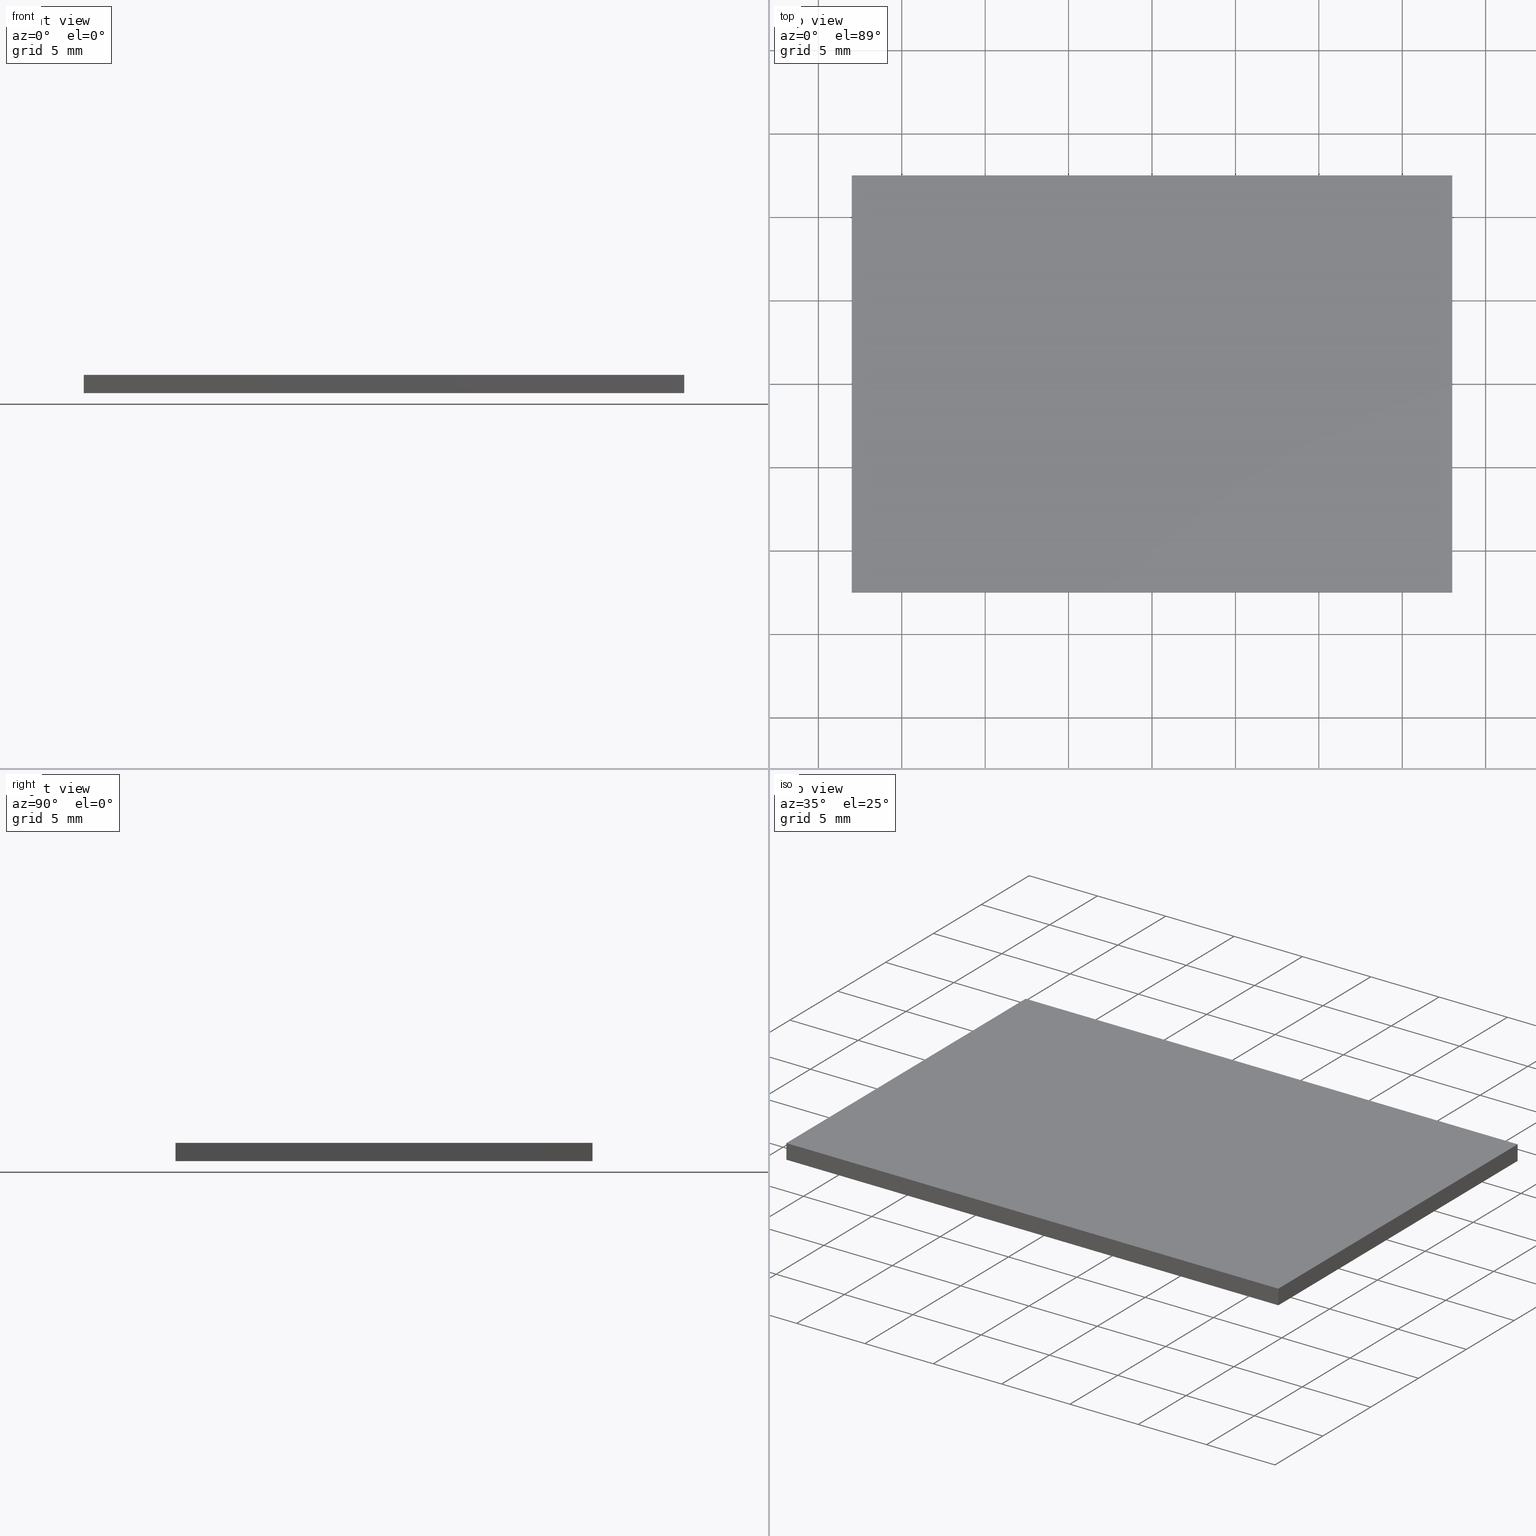
[diagram: canonical four-view strip — front | top / right | iso, engineering-drawing reading convention]
A machine part, canonical four-view strip (front | top / right | iso — engineering-drawing reading convention). The complete STEP part file that produces these views, byte-faithful:
ISO-10303-21;
HEADER;
FILE_DESCRIPTION (( 'STEP AP203' ),
    '1' );
FILE_NAME ('348505.STEP',
    '2019-07-31T07:36:08',
    ( '' ),
    ( '' ),
    'SwSTEP 2.0',
    'SolidWorks 2016',
    '' );
FILE_SCHEMA (( 'CONFIG_CONTROL_DESIGN' ));
ENDSEC;

DATA;
#1 = CALENDAR_DATE ( 2019, 31, 7 ) ;
#2 = SECURITY_CLASSIFICATION_LEVEL ( 'unclassified' ) ;
#3 = CC_DESIGN_PERSON_AND_ORGANIZATION_ASSIGNMENT ( #141, #199, ( #158 ) ) ;
#4 = ORIENTED_EDGE ( 'NONE', *, *, #246, .T. ) ;
#5 = PERSON_AND_ORGANIZATION ( #126, #157 ) ;
#6 = PRODUCT_DEFINITION_SHAPE ( 'NONE', 'NONE',  #16 ) ;
#7 = LINE ( 'NONE', #42, #259 ) ;
#8 = VERTEX_POINT ( 'NONE', #110 ) ;
#9 = PRODUCT_RELATED_PRODUCT_CATEGORY ( 'detail', '', ( #102 ) ) ;
#10 = VECTOR ( 'NONE', #262, 1000.000000000000000 ) ;
#11 = DIRECTION ( 'NONE',  ( -0.0000000000000000000, -0.0000000000000000000, -1.000000000000000000 ) ) ;
#12 = ORIENTED_EDGE ( 'NONE', *, *, #18, .T. ) ;
#13 = CARTESIAN_POINT ( 'NONE',  ( 17.99999999999999600, 12.49999999999999600, 0.0000000000000000000 ) ) ;
#14 = CARTESIAN_POINT ( 'NONE',  ( -18.00000000000000400, -12.50000000000000400, 1.100000000000000100 ) ) ;
#15 = APPROVAL_DATE_TIME ( #81, #311 ) ;
#16 = PRODUCT_DEFINITION ( 'δ֪', '', #103, #135 ) ;
#17 = DIRECTION ( 'NONE',  ( 0.0000000000000000000, -1.000000000000000000, 0.0000000000000000000 ) ) ;
#18 = EDGE_CURVE ( 'NONE', #184, #8, #266, .T. ) ;
#19 = ADVANCED_FACE ( 'NONE', ( #204 ), #188, .F. ) ;
#20 = PERSON_AND_ORGANIZATION_ROLE ( 'creator' ) ;
#21 = CALENDAR_DATE ( 2019, 31, 7 ) ;
#22 = VERTEX_POINT ( 'NONE', #302 ) ;
#23 = PERSON_AND_ORGANIZATION_ROLE ( 'creator' ) ;
#24 = EDGE_CURVE ( 'NONE', #80, #186, #46, .T. ) ;
#25 = CALENDAR_DATE ( 2019, 31, 7 ) ;
#26 = LINE ( 'NONE', #282, #94 ) ;
#27 = PRODUCT_DEFINITION ( 'δ֪', '', #158, #154 ) ;
#28 = COORDINATED_UNIVERSAL_TIME_OFFSET ( 8, 0, .AHEAD. ) ;
#29 = VECTOR ( 'NONE', #33, 1000.000000000000000 ) ;
#30 = APPROVAL_DATE_TIME ( #98, #53 ) ;
#31 = CC_DESIGN_PERSON_AND_ORGANIZATION_ASSIGNMENT ( #281, #20, ( #16 ) ) ;
#32 = CARTESIAN_POINT ( 'NONE',  ( -18.00000000000000400, 12.49999999999999600, 0.0000000000000000000 ) ) ;
#33 = DIRECTION ( 'NONE',  ( 0.0000000000000000000, 1.000000000000000000, 0.0000000000000000000 ) ) ;
#34 = APPROVAL_DATE_TIME ( #295, #147 ) ;
#35 = VECTOR ( 'NONE', #232, 1000.000000000000000 ) ;
#36 = CARTESIAN_POINT ( 'NONE',  ( -18.00000000000000400, -12.50000000000000400, 0.0000000000000000000 ) ) ;
#37 = AXIS2_PLACEMENT_3D ( 'NONE', #310, #73, #171 ) ;
#38 = CC_DESIGN_PERSON_AND_ORGANIZATION_ASSIGNMENT ( #253, #213, ( #269 ) ) ;
#39 = LOCAL_TIME ( 15, 36, 8.000000000000000000, #151 ) ;
#40 = DIRECTION ( 'NONE',  ( -1.000000000000000000, 0.0000000000000000000, 0.0000000000000000000 ) ) ;
#41 = DIRECTION ( 'NONE',  ( 0.0000000000000000000, 0.0000000000000000000, 1.000000000000000000 ) ) ;
#42 = CARTESIAN_POINT ( 'NONE',  ( -18.00000000000000400, 12.49999999999999600, 1.100000000000000100 ) ) ;
#43 =( NAMED_UNIT ( * ) SI_UNIT ( $, .STERADIAN. ) SOLID_ANGLE_UNIT ( ) );
#44 = PERSON_AND_ORGANIZATION_ROLE ( 'design_supplier' ) ;
#45 = APPROVAL_STATUS ( 'not_yet_approved' ) ;
#46 = LINE ( 'NONE', #277, #301 ) ;
#47 = SECURITY_CLASSIFICATION ( '', '', #289 ) ;
#48 = APPLICATION_CONTEXT ( 'configuration controlled 3d designs of mechanical parts and assemblies' ) ;
#49 = APPROVAL_ROLE ( '' ) ;
#50 = COORDINATED_UNIVERSAL_TIME_OFFSET ( 8, 0, .AHEAD. ) ;
#51 = ORIENTED_EDGE ( 'NONE', *, *, #246, .F. ) ;
#52 = AXIS2_PLACEMENT_3D ( 'NONE', #105, #133, #300 ) ;
#53 = APPROVAL ( #119, 'δָ��' ) ;
#54 = APPROVAL_PERSON_ORGANIZATION ( #247, #132, #49 ) ;
#55 = ORIENTED_EDGE ( 'NONE', *, *, #223, .T. ) ;
#56 = EDGE_CURVE ( 'NONE', #78, #22, #201, .T. ) ;
#57 = SECURITY_CLASSIFICATION ( '', '', #2 ) ;
#58 = APPROVAL_PERSON_ORGANIZATION ( #274, #82, #177 ) ;
#59 = FACE_OUTER_BOUND ( 'NONE', #271, .T. ) ;
#60 = EDGE_CURVE ( 'NONE', #22, #8, #261, .T. ) ;
#61 = UNCERTAINTY_MEASURE_WITH_UNIT (LENGTH_MEASURE( 1.000000000000000100E-005 ), #166, 'distance_accuracy_value', 'NONE');
#62 = CARTESIAN_POINT ( 'NONE',  ( 17.99999999999999600, 12.49999999999999600, 1.100000000000000100 ) ) ;
#63 = ORIENTED_EDGE ( 'NONE', *, *, #273, .T. ) ;
#64 = CARTESIAN_POINT ( 'NONE',  ( 17.99999999999999600, -12.50000000000000400, 1.100000000000000100 ) ) ;
#65 = CC_DESIGN_APPROVAL ( #147, ( #27 ) ) ;
#66 = DATE_AND_TIME ( #25, #39 ) ;
#67 = ORIENTED_EDGE ( 'NONE', *, *, #159, .F. ) ;
#68 = DIRECTION ( 'NONE',  ( -0.0000000000000000000, -1.000000000000000000, -0.0000000000000000000 ) ) ;
#69 = DIRECTION ( 'NONE',  ( 1.000000000000000000, 0.0000000000000000000, 0.0000000000000000000 ) ) ;
#70 = DIRECTION ( 'NONE',  ( 0.0000000000000000000, 1.000000000000000000, 0.0000000000000000000 ) ) ;
#71 = ORIENTED_EDGE ( 'NONE', *, *, #258, .F. ) ;
#72 = APPROVAL_STATUS ( 'not_yet_approved' ) ;
#73 = DIRECTION ( 'NONE',  ( 0.0000000000000000000, 0.0000000000000000000, -1.000000000000000000 ) ) ;
#74 = APPLICATION_PROTOCOL_DEFINITION ( 'international standard', 'config_control_design', 1994, #143 ) ;
#75 = DATE_AND_TIME ( #136, #167 ) ;
#76 = EDGE_LOOP ( 'NONE', ( #231, #63, #207, #257 ) ) ;
#77 = FACE_OUTER_BOUND ( 'NONE', #107, .T. ) ;
#78 = VERTEX_POINT ( 'NONE', #32 ) ;
#79 = CC_DESIGN_PERSON_AND_ORGANIZATION_ASSIGNMENT ( #294, #97, ( #57 ) ) ;
#80 = VERTEX_POINT ( 'NONE', #161 ) ;
#81 = DATE_AND_TIME ( #152, #275 ) ;
#82 = APPROVAL ( #291, 'δָ��' ) ;
#83 = PLANE ( 'NONE',  #52 ) ;
#84 = EDGE_CURVE ( 'NONE', #113, #78, #101, .T. ) ;
#85 = PERSON_AND_ORGANIZATION ( #126, #157 ) ;
#86 = DIRECTION ( 'NONE',  ( 0.0000000000000000000, 0.0000000000000000000, -1.000000000000000000 ) ) ;
#87 = VECTOR ( 'NONE', #193, 1000.000000000000000 ) ;
#88 = CC_DESIGN_APPROVAL ( #82, ( #103 ) ) ;
#89 = EDGE_CURVE ( 'NONE', #254, #113, #225, .T. ) ;
#90 = CARTESIAN_POINT ( 'NONE',  ( -18.00000000000000400, 12.49999999999999600, 1.100000000000000100 ) ) ;
#91 = ADVANCED_FACE ( 'NONE', ( #95 ), #83, .F. ) ;
#92 = APPROVAL_ROLE ( '' ) ;
#93 = DIRECTION ( 'NONE',  ( 0.0000000000000000000, -0.0000000000000000000, 1.000000000000000000 ) ) ;
#94 = VECTOR ( 'NONE', #194, 1000.000000000000000 ) ;
#95 = FACE_OUTER_BOUND ( 'NONE', #76, .T. ) ;
#96 = APPROVAL_ROLE ( '' ) ;
#97 = PERSON_AND_ORGANIZATION_ROLE ( 'classification_officer' ) ;
#98 = DATE_AND_TIME ( #297, #244 ) ;
#99 = COORDINATED_UNIVERSAL_TIME_OFFSET ( 8, 0, .AHEAD. ) ;
#100 = LOCAL_TIME ( 15, 36, 8.000000000000000000, #174 ) ;
#101 = LINE ( 'NONE', #208, #35 ) ;
#102 = PRODUCT ( '348505', '348505', '', ( #146 ) ) ;
#103 = PRODUCT_DEFINITION_FORMATION_WITH_SPECIFIED_SOURCE ( '�κ�', '', #102, .NOT_KNOWN. ) ;
#104 = COORDINATED_UNIVERSAL_TIME_OFFSET ( 8, 0, .AHEAD. ) ;
#105 = CARTESIAN_POINT ( 'NONE',  ( 0.0000000000000000000, 0.0000000000000000000, 1.100000000000000100 ) ) ;
#106 = FACE_OUTER_BOUND ( 'NONE', #195, .T. ) ;
#107 = EDGE_LOOP ( 'NONE', ( #67, #131, #309, #251 ) ) ;
#108 = DIRECTION ( 'NONE',  ( 1.000000000000000000, 0.0000000000000000000, 0.0000000000000000000 ) ) ;
#109 = CC_DESIGN_DATE_AND_TIME_ASSIGNMENT ( #75, #178, ( #57 ) ) ;
#110 = CARTESIAN_POINT ( 'NONE',  ( 17.99999999999999600, -12.50000000000000400, 0.0000000000000000000 ) ) ;
#111 = DATE_AND_TIME ( #304, #210 ) ;
#112 = CARTESIAN_POINT ( 'NONE',  ( 17.99999999999999600, -12.50000000000000400, 1.100000000000000100 ) ) ;
#113 = VERTEX_POINT ( 'NONE', #13 ) ;
#114 = CARTESIAN_POINT ( 'NONE',  ( 17.99999999999999600, -12.50000000000000400, 1.100000000000000100 ) ) ;
#115 = DIRECTION ( 'NONE',  ( 0.0000000000000000000, -0.0000000000000000000, -1.000000000000000000 ) ) ;
#116 = CC_DESIGN_APPROVAL ( #53, ( #57 ) ) ;
#117 = DIRECTION ( 'NONE',  ( 0.0000000000000000000, 1.000000000000000000, 0.0000000000000000000 ) ) ;
#118 = ORIENTED_EDGE ( 'NONE', *, *, #223, .F. ) ;
#119 = APPROVAL_STATUS ( 'not_yet_approved' ) ;
#120 = PERSON_AND_ORGANIZATION_ROLE ( 'creator' ) ;
#121 = APPROVAL_PERSON_ORGANIZATION ( #5, #53, #216 ) ;
#122 = VECTOR ( 'NONE', #11, 1000.000000000000000 ) ;
#123 = CC_DESIGN_PERSON_AND_ORGANIZATION_ASSIGNMENT ( #85, #120, ( #158 ) ) ;
#124 = LOCAL_TIME ( 15, 36, 8.000000000000000000, #203 ) ;
#125 = ORIENTED_EDGE ( 'NONE', *, *, #89, .F. ) ;
#126 = PERSON ( 'δָ��', 'δָ��', 'δָ��', ('δָ��'), ('δָ��'), ('δָ��') ) ;
#127 = CC_DESIGN_SECURITY_CLASSIFICATION ( #57, ( #103 ) ) ;
#128 = PERSON_AND_ORGANIZATION ( #126, #157 ) ;
#129 = ORIENTED_EDGE ( 'NONE', *, *, #18, .F. ) ;
#130 = FACE_OUTER_BOUND ( 'NONE', #248, .T. ) ;
#131 = ORIENTED_EDGE ( 'NONE', *, *, #60, .F. ) ;
#132 = APPROVAL ( #45, 'δָ��' ) ;
#133 = DIRECTION ( 'NONE',  ( 0.0000000000000000000, 0.0000000000000000000, -1.000000000000000000 ) ) ;
#134 = DIRECTION ( 'NONE',  ( -0.0000000000000000000, -1.000000000000000000, -0.0000000000000000000 ) ) ;
#135 = DESIGN_CONTEXT ( 'detailed design', #48, 'design' ) ;
#136 = CALENDAR_DATE ( 2019, 31, 7 ) ;
#137 = PLANE ( 'NONE',  #37 ) ;
#138 = PLANE ( 'NONE',  #222 ) ;
#139 = APPROVAL ( #149, 'δָ��' ) ;
#140 = APPLICATION_PROTOCOL_DEFINITION ( 'international standard', 'config_control_design', 1994, #214 ) ;
#141 = PERSON_AND_ORGANIZATION ( #126, #157 ) ;
#142 = ORIENTED_EDGE ( 'NONE', *, *, #89, .T. ) ;
#143 = APPLICATION_CONTEXT ( 'configuration controlled 3d designs of mechanical parts and assemblies' ) ;
#144 = AXIS2_PLACEMENT_3D ( 'NONE', #260, #117, #93 ) ;
#145 = AXIS2_PLACEMENT_3D ( 'NONE', #230, #108, #86 ) ;
#146 = MECHANICAL_CONTEXT ( 'NONE', #143, 'mechanical' ) ;
#147 = APPROVAL ( #72, 'δָ��' ) ;
#148 = PERSON_AND_ORGANIZATION ( #126, #157 ) ;
#149 = APPROVAL_STATUS ( 'not_yet_approved' ) ;
#150 = ORIENTED_EDGE ( 'NONE', *, *, #226, .F. ) ;
#151 = COORDINATED_UNIVERSAL_TIME_OFFSET ( 8, 0, .AHEAD. ) ;
#152 = CALENDAR_DATE ( 2019, 31, 7 ) ;
#153 = CC_DESIGN_DATE_AND_TIME_ASSIGNMENT ( #168, #314, ( #47 ) ) ;
#154 = DESIGN_CONTEXT ( 'detailed design', #191, 'design' ) ;
#155 = APPROVAL_PERSON_ORGANIZATION ( #217, #311, #96 ) ;
#156 = ORIENTED_EDGE ( 'NONE', *, *, #56, .T. ) ;
#157 = ORGANIZATION ( 'δָ��', 'δָ��', '' ) ;
#158 = PRODUCT_DEFINITION_FORMATION_WITH_SPECIFIED_SOURCE ( '�κ�', '', #269, .NOT_KNOWN. ) ;
#159 = EDGE_CURVE ( 'NONE', #8, #113, #162, .T. ) ;
#160 = PERSON_AND_ORGANIZATION ( #126, #157 ) ;
#161 = CARTESIAN_POINT ( 'NONE',  ( -18.00000000000000400, 12.49999999999999600, 1.100000000000000100 ) ) ;
#162 = LINE ( 'NONE', #187, #29 ) ;
#163 = AXIS2_PLACEMENT_3D ( 'NONE', #237, #284, #69 ) ;
#164 = DIRECTION ( 'NONE',  ( 1.000000000000000000, 0.0000000000000000000, 0.0000000000000000000 ) ) ;
#165 = DIRECTION ( 'NONE',  ( -0.0000000000000000000, -0.0000000000000000000, -1.000000000000000000 ) ) ;
#166 =( LENGTH_UNIT ( ) NAMED_UNIT ( * ) SI_UNIT ( .MILLI., .METRE. ) );
#167 = LOCAL_TIME ( 15, 36, 8.000000000000000000, #227 ) ;
#168 = DATE_AND_TIME ( #21, #278 ) ;
#169 = CARTESIAN_POINT ( 'NONE',  ( -18.00000000000000400, 12.49999999999999600, 1.100000000000000100 ) ) ;
#170 = MECHANICAL_CONTEXT ( 'NONE', #214, 'mechanical' ) ;
#171 = DIRECTION ( 'NONE',  ( -1.000000000000000000, 0.0000000000000000000, -0.0000000000000000000 ) ) ;
#172 = PRODUCT_RELATED_PRODUCT_CATEGORY ( 'detail', '', ( #269 ) ) ;
#173 = DIRECTION ( 'NONE',  ( 0.0000000000000000000, 0.0000000000000000000, 1.000000000000000000 ) ) ;
#174 = COORDINATED_UNIVERSAL_TIME_OFFSET ( 8, 0, .AHEAD. ) ;
#175 = VECTOR ( 'NONE', #165, 1000.000000000000000 ) ;
#176 = APPLICATION_PROTOCOL_DEFINITION ( 'international standard', 'config_control_design', 1994, #48 ) ;
#177 = APPROVAL_ROLE ( '' ) ;
#178 = DATE_TIME_ROLE ( 'classification_date' ) ;
#179 = DATE_AND_TIME ( #1, #233 ) ;
#180 = CALENDAR_DATE ( 2019, 31, 7 ) ;
#181 = VECTOR ( 'NONE', #70, 1000.000000000000000 ) ;
#182 = CC_DESIGN_DATE_AND_TIME_ASSIGNMENT ( #66, #263, ( #16 ) ) ;
#183 = APPROVAL_PERSON_ORGANIZATION ( #205, #139, #218 ) ;
#184 = VERTEX_POINT ( 'NONE', #64 ) ;
#185 = CARTESIAN_POINT ( 'NONE',  ( -18.00000000000000400, -12.50000000000000400, 0.0000000000000000000 ) ) ;
#186 = VERTEX_POINT ( 'NONE', #286 ) ;
#187 = CARTESIAN_POINT ( 'NONE',  ( 17.99999999999999600, -12.50000000000000400, 0.0000000000000000000 ) ) ;
#188 = PLANE ( 'NONE',  #145 ) ;
#189 = PERSON_AND_ORGANIZATION ( #126, #157 ) ;
#190 = EDGE_LOOP ( 'NONE', ( #156, #118, #206, #4 ) ) ;
#191 = APPLICATION_CONTEXT ( 'configuration controlled 3d designs of mechanical parts and assemblies' ) ;
#192 = CARTESIAN_POINT ( 'NONE',  ( 17.99999999999999600, -12.50000000000000400, 1.100000000000000100 ) ) ;
#193 = DIRECTION ( 'NONE',  ( -0.0000000000000000000, -0.0000000000000000000, -1.000000000000000000 ) ) ;
#194 = DIRECTION ( 'NONE',  ( 1.000000000000000000, 0.0000000000000000000, 0.0000000000000000000 ) ) ;
#195 = EDGE_LOOP ( 'NONE', ( #298, #51, #202, #142 ) ) ;
#196 = DATE_TIME_ROLE ( 'creation_date' ) ;
#197 = PERSON_AND_ORGANIZATION_ROLE ( 'design_owner' ) ;
#198 = CC_DESIGN_PERSON_AND_ORGANIZATION_ASSIGNMENT ( #189, #44, ( #103 ) ) ;
#199 = PERSON_AND_ORGANIZATION_ROLE ( 'design_supplier' ) ;
#200 = APPROVAL_DATE_TIME ( #179, #139 ) ;
#201 = LINE ( 'NONE', #36, #296 ) ;
#202 = ORIENTED_EDGE ( 'NONE', *, *, #273, .F. ) ;
#203 = COORDINATED_UNIVERSAL_TIME_OFFSET ( 8, 0, .AHEAD. ) ;
#204 = FACE_OUTER_BOUND ( 'NONE', #190, .T. ) ;
#205 = PERSON_AND_ORGANIZATION ( #126, #157 ) ;
#206 = ORIENTED_EDGE ( 'NONE', *, *, #24, .F. ) ;
#207 = ORIENTED_EDGE ( 'NONE', *, *, #24, .T. ) ;
#208 = CARTESIAN_POINT ( 'NONE',  ( -18.00000000000000400, 12.49999999999999600, 0.0000000000000000000 ) ) ;
#209 = DIRECTION ( 'NONE',  ( 1.000000000000000000, 0.0000000000000000000, 0.0000000000000000000 ) ) ;
#210 = LOCAL_TIME ( 15, 36, 8.000000000000000000, #250 ) ;
#211 = PERSON_AND_ORGANIZATION_ROLE ( 'creator' ) ;
#212 = CALENDAR_DATE ( 2019, 31, 7 ) ;
#213 = PERSON_AND_ORGANIZATION_ROLE ( 'design_owner' ) ;
#214 = APPLICATION_CONTEXT ( 'configuration controlled 3d designs of mechanical parts and assemblies' ) ;
#215 = PLANE ( 'NONE',  #242 ) ;
#216 = APPROVAL_ROLE ( '' ) ;
#217 = PERSON_AND_ORGANIZATION ( #126, #157 ) ;
#218 = APPROVAL_ROLE ( '' ) ;
#219 = LINE ( 'NONE', #14, #87 ) ;
#220 = LINE ( 'NONE', #90, #10 ) ;
#221 = CC_DESIGN_PERSON_AND_ORGANIZATION_ASSIGNMENT ( #267, #197, ( #102 ) ) ;
#222 = AXIS2_PLACEMENT_3D ( 'NONE', #192, #40, #41 ) ;
#223 = EDGE_CURVE ( 'NONE', #186, #22, #219, .T. ) ;
#224 = DATE_AND_TIME ( #288, #238 ) ;
#225 = LINE ( 'NONE', #62, #175 ) ;
#226 = EDGE_CURVE ( 'NONE', #184, #254, #270, .T. ) ;
#227 = COORDINATED_UNIVERSAL_TIME_OFFSET ( 8, 0, .AHEAD. ) ;
#228 = APPROVAL_DATE_TIME ( #224, #132 ) ;
#229 = APPROVAL_PERSON_ORGANIZATION ( #148, #147, #92 ) ;
#230 = CARTESIAN_POINT ( 'NONE',  ( -18.00000000000000400, -12.50000000000000400, 1.100000000000000100 ) ) ;
#231 = ORIENTED_EDGE ( 'NONE', *, *, #226, .T. ) ;
#232 = DIRECTION ( 'NONE',  ( -1.000000000000000000, -0.0000000000000000000, -0.0000000000000000000 ) ) ;
#233 = LOCAL_TIME ( 15, 36, 8.000000000000000000, #104 ) ;
#234 = CARTESIAN_POINT ( 'NONE',  ( 17.99999999999999600, 12.49999999999999600, 1.100000000000000100 ) ) ;
#235 = CC_DESIGN_APPROVAL ( #132, ( #158 ) ) ;
#236 = ADVANCED_FACE ( 'NONE', ( #59 ), #305, .F. ) ;
#237 = CARTESIAN_POINT ( 'NONE',  ( 0.0000000000000000000, 0.0000000000000000000, 0.0000000000000000000 ) ) ;
#238 = LOCAL_TIME ( 15, 36, 8.000000000000000000, #299 ) ;
#239 = VECTOR ( 'NONE', #164, 1000.000000000000000 ) ;
#240 = DIRECTION ( 'NONE',  ( -0.0000000000000000000, -0.0000000000000000000, -1.000000000000000000 ) ) ;
#241 = PERSON_AND_ORGANIZATION_ROLE ( 'classification_officer' ) ;
#242 = AXIS2_PLACEMENT_3D ( 'NONE', #169, #17, #115 ) ;
#243 = AXIS2_PLACEMENT_3D ( 'NONE', #306, #173, #209 ) ;
#244 = LOCAL_TIME ( 15, 36, 8.000000000000000000, #50 ) ;
#245 = ORIENTED_EDGE ( 'NONE', *, *, #60, .T. ) ;
#246 = EDGE_CURVE ( 'NONE', #80, #78, #7, .T. ) ;
#247 = PERSON_AND_ORGANIZATION ( #126, #157 ) ;
#248 = EDGE_LOOP ( 'NONE', ( #279, #125, #150, #12 ) ) ;
#249 = MANIFOLD_SOLID_BREP ( '͹̨-����1', #290 ) ;
#250 = COORDINATED_UNIVERSAL_TIME_OFFSET ( 8, 0, .AHEAD. ) ;
#251 = ORIENTED_EDGE ( 'NONE', *, *, #84, .F. ) ;
#252 = CC_DESIGN_PERSON_AND_ORGANIZATION_ASSIGNMENT ( #160, #241, ( #47 ) ) ;
#253 = PERSON_AND_ORGANIZATION ( #126, #157 ) ;
#254 = VERTEX_POINT ( 'NONE', #234 ) ;
#255 =( GEOMETRIC_REPRESENTATION_CONTEXT ( 3 ) GLOBAL_UNCERTAINTY_ASSIGNED_CONTEXT ( ( #61 ) ) GLOBAL_UNIT_ASSIGNED_CONTEXT ( ( #166, #307, #43 ) ) REPRESENTATION_CONTEXT ( 'NONE', 'WORKASPACE' ) );
#256 = APPROVAL_DATE_TIME ( #111, #82 ) ;
#257 = ORIENTED_EDGE ( 'NONE', *, *, #258, .T. ) ;
#258 = EDGE_CURVE ( 'NONE', #186, #184, #26, .T. ) ;
#259 = VECTOR ( 'NONE', #240, 1000.000000000000000 ) ;
#260 = CARTESIAN_POINT ( 'NONE',  ( -18.00000000000000400, -12.50000000000000400, 1.100000000000000100 ) ) ;
#261 = LINE ( 'NONE', #185, #239 ) ;
#262 = DIRECTION ( 'NONE',  ( -1.000000000000000000, -0.0000000000000000000, -0.0000000000000000000 ) ) ;
#263 = DATE_TIME_ROLE ( 'creation_date' ) ;
#264 = PERSON_AND_ORGANIZATION ( #126, #157 ) ;
#265 = ADVANCED_FACE ( 'NONE', ( #130 ), #138, .F. ) ;
#266 = LINE ( 'NONE', #112, #122 ) ;
#267 = PERSON_AND_ORGANIZATION ( #126, #157 ) ;
#268 = CC_DESIGN_APPROVAL ( #139, ( #16 ) ) ;
#269 = PRODUCT ( '348505', '348505', '', ( #170 ) ) ;
#270 = LINE ( 'NONE', #114, #181 ) ;
#271 = EDGE_LOOP ( 'NONE', ( #245, #129, #71, #55 ) ) ;
#272 = CC_DESIGN_DATE_AND_TIME_ASSIGNMENT ( #308, #196, ( #27 ) ) ;
#273 = EDGE_CURVE ( 'NONE', #254, #80, #220, .T. ) ;
#274 = PERSON_AND_ORGANIZATION ( #126, #157 ) ;
#275 = LOCAL_TIME ( 15, 36, 8.000000000000000000, #99 ) ;
#276 = CC_DESIGN_APPROVAL ( #311, ( #47 ) ) ;
#277 = CARTESIAN_POINT ( 'NONE',  ( -18.00000000000000400, -12.50000000000000400, 1.100000000000000100 ) ) ;
#278 = LOCAL_TIME ( 15, 36, 8.000000000000000000, #28 ) ;
#279 = ORIENTED_EDGE ( 'NONE', *, *, #159, .T. ) ;
#280 = ADVANCED_BREP_SHAPE_REPRESENTATION ( '348505', ( #249, #243 ), #255 ) ;
#281 = PERSON_AND_ORGANIZATION ( #126, #157 ) ;
#282 = CARTESIAN_POINT ( 'NONE',  ( -18.00000000000000400, -12.50000000000000400, 1.100000000000000100 ) ) ;
#283 = SHAPE_DEFINITION_REPRESENTATION ( #6, #280 ) ;
#284 = DIRECTION ( 'NONE',  ( 0.0000000000000000000, 0.0000000000000000000, 1.000000000000000000 ) ) ;
#285 = CC_DESIGN_PERSON_AND_ORGANIZATION_ASSIGNMENT ( #264, #211, ( #27 ) ) ;
#286 = CARTESIAN_POINT ( 'NONE',  ( -18.00000000000000400, -12.50000000000000400, 1.100000000000000100 ) ) ;
#287 = APPLICATION_PROTOCOL_DEFINITION ( 'international standard', 'config_control_design', 1994, #191 ) ;
#288 = CALENDAR_DATE ( 2019, 31, 7 ) ;
#289 = SECURITY_CLASSIFICATION_LEVEL ( 'unclassified' ) ;
#290 = CLOSED_SHELL ( 'NONE', ( #265, #293, #19, #236, #91, #313 ) ) ;
#291 = APPROVAL_STATUS ( 'not_yet_approved' ) ;
#292 = CC_DESIGN_PERSON_AND_ORGANIZATION_ASSIGNMENT ( #128, #23, ( #103 ) ) ;
#293 = ADVANCED_FACE ( 'NONE', ( #106 ), #215, .F. ) ;
#294 = PERSON_AND_ORGANIZATION ( #126, #157 ) ;
#295 = DATE_AND_TIME ( #180, #100 ) ;
#296 = VECTOR ( 'NONE', #68, 1000.000000000000000 ) ;
#297 = CALENDAR_DATE ( 2019, 31, 7 ) ;
#298 = ORIENTED_EDGE ( 'NONE', *, *, #84, .T. ) ;
#299 = COORDINATED_UNIVERSAL_TIME_OFFSET ( 8, 0, .AHEAD. ) ;
#300 = DIRECTION ( 'NONE',  ( -1.000000000000000000, 0.0000000000000000000, -0.0000000000000000000 ) ) ;
#301 = VECTOR ( 'NONE', #134, 1000.000000000000000 ) ;
#302 = CARTESIAN_POINT ( 'NONE',  ( -18.00000000000000400, -12.50000000000000400, 0.0000000000000000000 ) ) ;
#303 = CC_DESIGN_SECURITY_CLASSIFICATION ( #47, ( #158 ) ) ;
#304 = CALENDAR_DATE ( 2019, 31, 7 ) ;
#305 = PLANE ( 'NONE',  #144 ) ;
#306 = CARTESIAN_POINT ( 'NONE',  ( 0.0000000000000000000, 0.0000000000000000000, 0.0000000000000000000 ) ) ;
#307 =( NAMED_UNIT ( * ) PLANE_ANGLE_UNIT ( ) SI_UNIT ( $, .RADIAN. ) );
#308 = DATE_AND_TIME ( #212, #124 ) ;
#309 = ORIENTED_EDGE ( 'NONE', *, *, #56, .F. ) ;
#310 = CARTESIAN_POINT ( 'NONE',  ( 0.0000000000000000000, 0.0000000000000000000, 0.0000000000000000000 ) ) ;
#311 = APPROVAL ( #312, 'δָ��' ) ;
#312 = APPROVAL_STATUS ( 'not_yet_approved' ) ;
#313 = ADVANCED_FACE ( 'NONE', ( #77 ), #137, .T. ) ;
#314 = DATE_TIME_ROLE ( 'classification_date' ) ;
#315 = PRODUCT_DEFINITION_SHAPE ( 'NONE', 'NONE',  #27 ) ;
ENDSEC;
END-ISO-10303-21;
